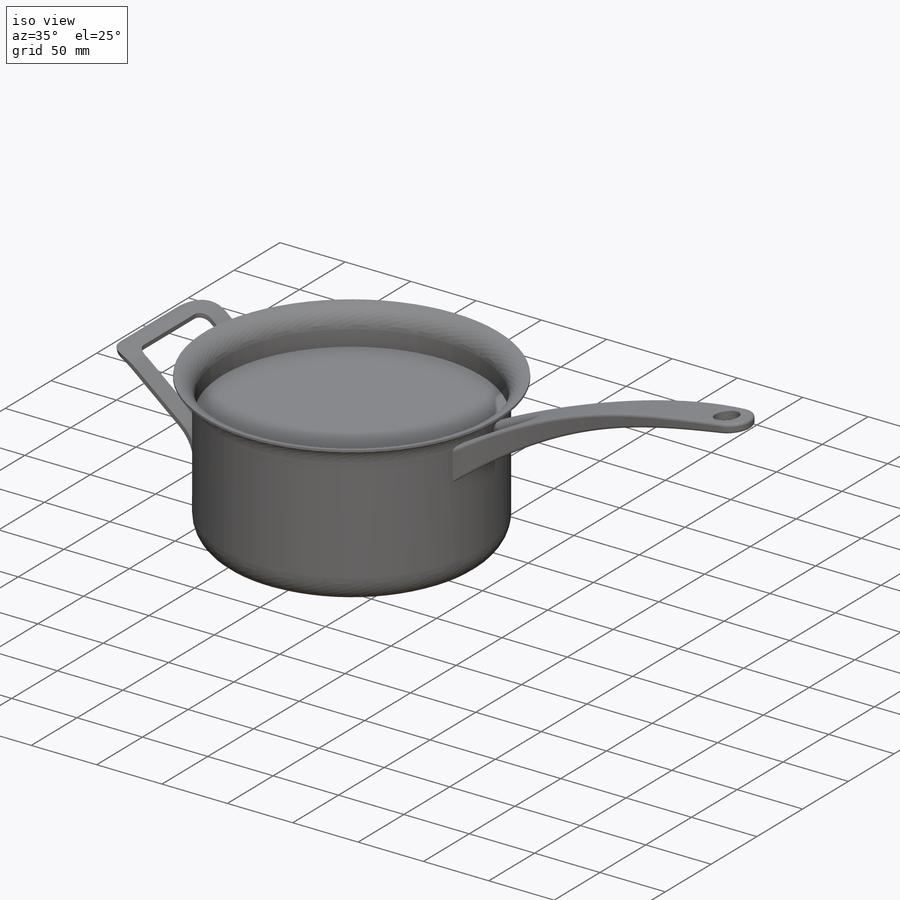
[diagram: iso view]
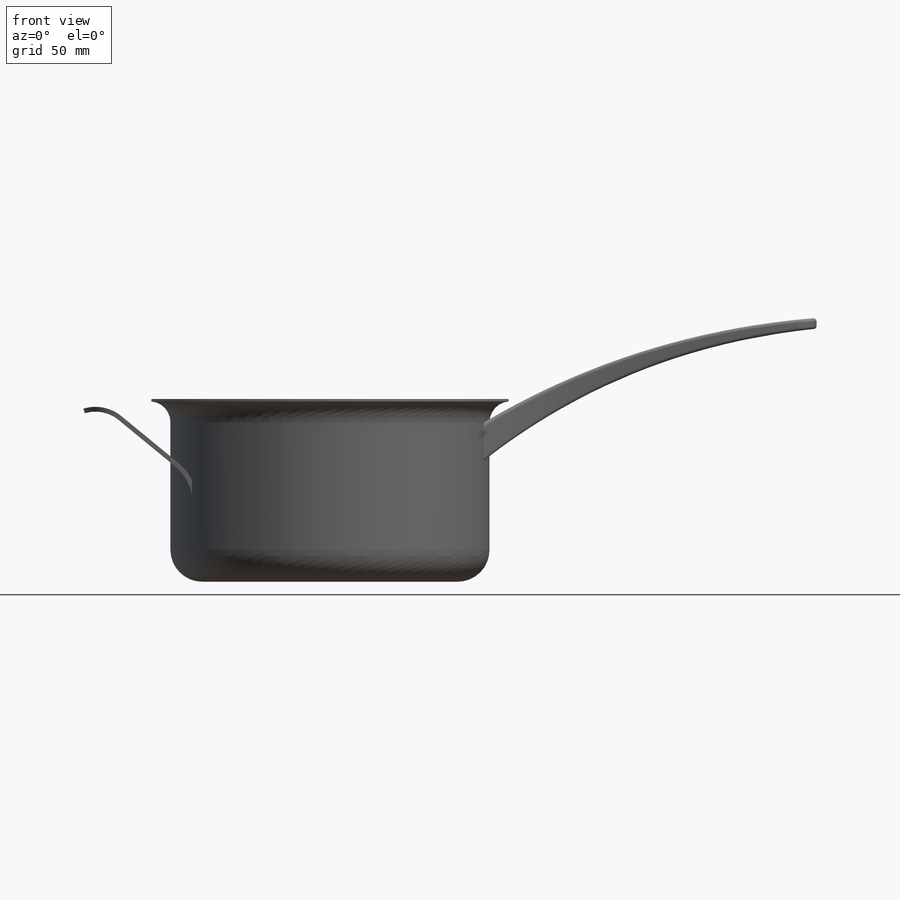
[diagram: front view]
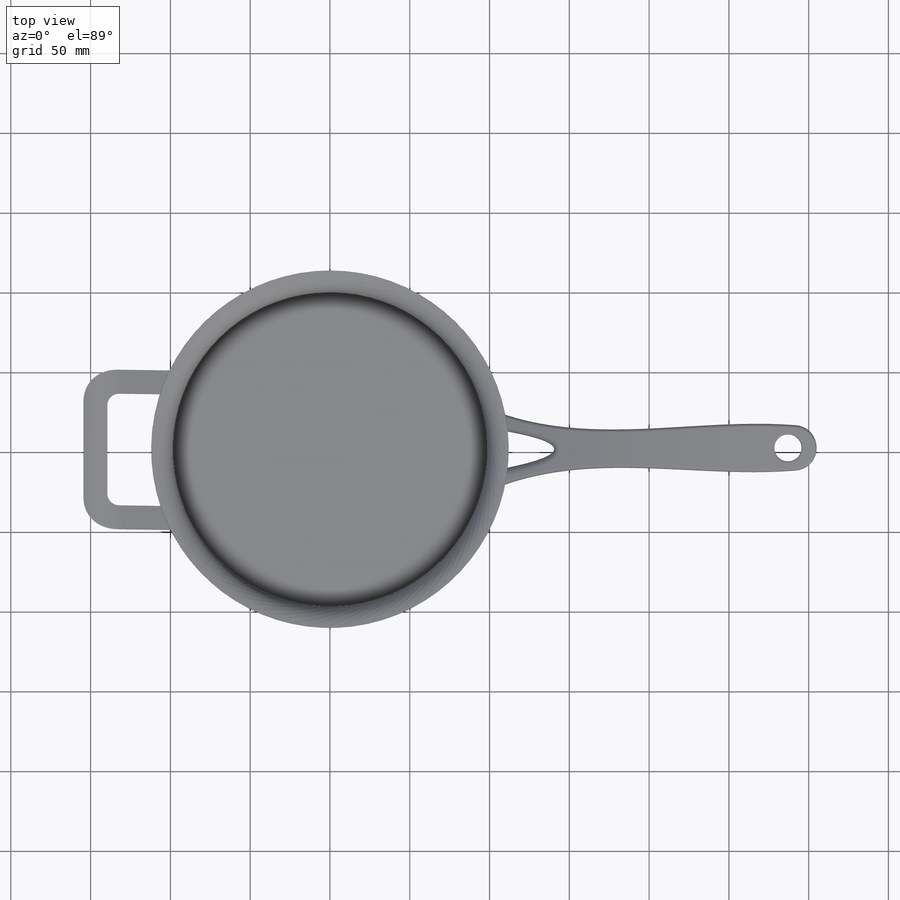
[diagram: top view]
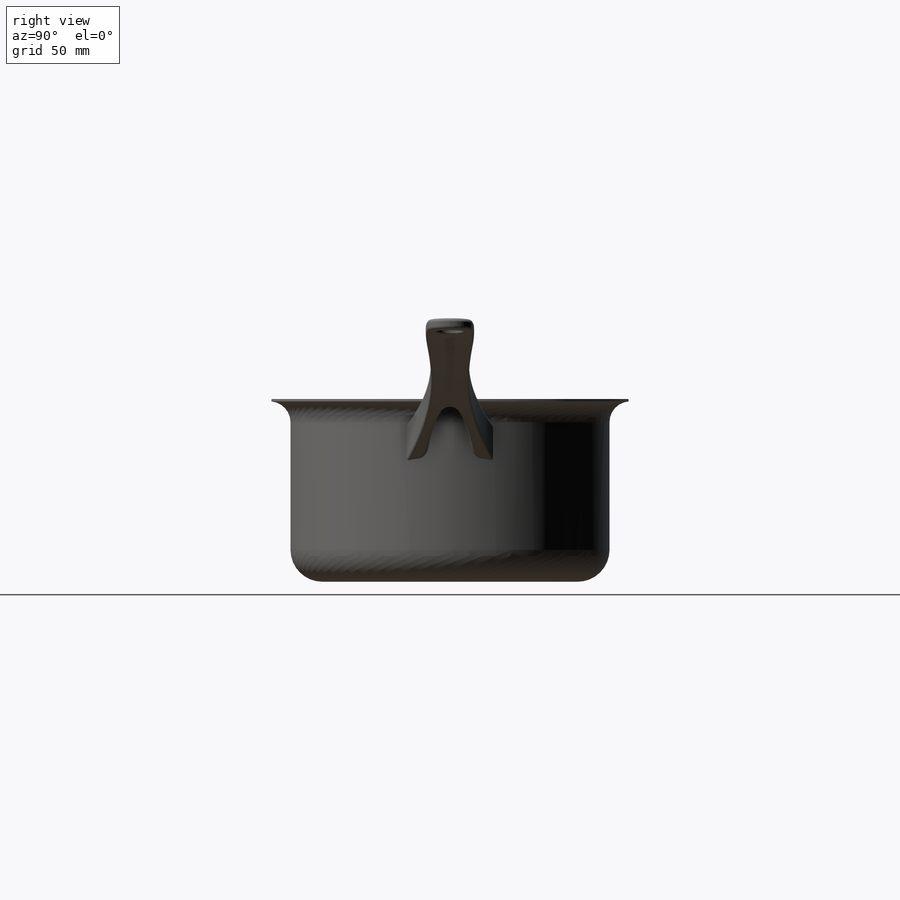
[diagram: right view]
SOLIDWORKS PART (.sldprt)
format: sldprt  version: not decoded by parser v0  size: 998,912 bytes
history: native  units: mm
features: sketch x12, fillet x6, plane x5, cut_extrude x5, revolve x3, extrude x3, material x1, pattern_circular x1 (+8 scaffold rows collapsed)
feature tree (44):
  scaffold x8  (default folders/planes/origin — collapsed)
  material  "Material <not specified>"
  plane  "Plan de face"
  plane  "Plan de dessus"
  plane  "Plan de droite"
  sketch  "Esquisse1"  dims[c1.D3=20.0mm c1.D1=100.0mm c1.D2=100.0mm c2.D1=100.0mm c2.D5=12.0mm c2.D6=13.0mm c2.D4=1.5mm]
  revolve  "Révolution1"  Angle=360deg
  sketch  "Esquisse2"
  revolve  "Révolution2"  Angle=360deg
  sketch  "Esquisse3"  dims[c1.D4=~302.521562mm c1.D5=10.0mm c1.D6=5.0mm c1.D1=20.0mm c1.D2=40.0mm c1.D3=5.0mm c2.D4=20.0mm c2.D2=139.0mm c2.D1=10.0mm c3.D2=10.0mm c3.D5=2.0mm c3.D6=10.0mm c3.D7=5.0mm]
  sketch  "Esquisse4"  dims[D1=3.0mm]
  revolve  "Révolution6"  Angle=360deg
  pattern_circular  "Répétition circulaire1"  Count=2 Angle=360deg
  sketch  "Esquisse5"  dims[D1=3.0mm]
  extrude  "Boss.-Extru.1"  Depth=50mm
  fillet  "Congé1"  Radius=20mm
  sketch  "Esquisse6"  dims[D1=15.0mm D2=15.0mm D3=15.0mm]
  cut_extrude  "Enlèv. mat.-Extru.1"  Depth=130mm
  sketch  "Esquisse7"  dims[D1=25.0mm]
  extrude  "Boss.-Extru.2"  Depth=30mm
  sketch  "Esquisse8"
  cut_extrude  "Enlèv. mat.-Extru.2"  [1 undecoded]
  sketch  "Esquisse9"  dims[D1=15.0mm D2=15.0mm]
  cut_extrude  "Enlèv. mat.-Extru.3"  Depth=130mm
  fillet  "Congé2"  Radius=14mm
  sketch  "Esquisse10"  dims[D1=17.0mm D2=287.0mm]
  cut_extrude  "Enlèv. mat.-Extru.4"  Depth=180mm
  fillet  "Congé3"  Radius=2mm
  fillet  "Congé4"  Radius=5mm
  fillet  "Congé5"  Radius=1mm
  fillet  "Congé6"  Radius=5mm
  plane  "Plane1"  Offset=157.927156mm
  sketch  "Sketch1"
  cut_extrude  "Cut-Extrude1"  Depth=140mm
  plane  "Plane2"  Offset=69.991477mm
  sketch  "Sketch3"  dims[D1=0.5mm]
  extrude  "Boss-Extrude1"  [1 undecoded]
decode coverage: 25 of 30 modeling features carry decoded parameters
note: ~ marks probable driven/reference dimensions
note: 2 parameter values undecoded
note: suppression state not decoded; provenance and decode notes live in map.json
